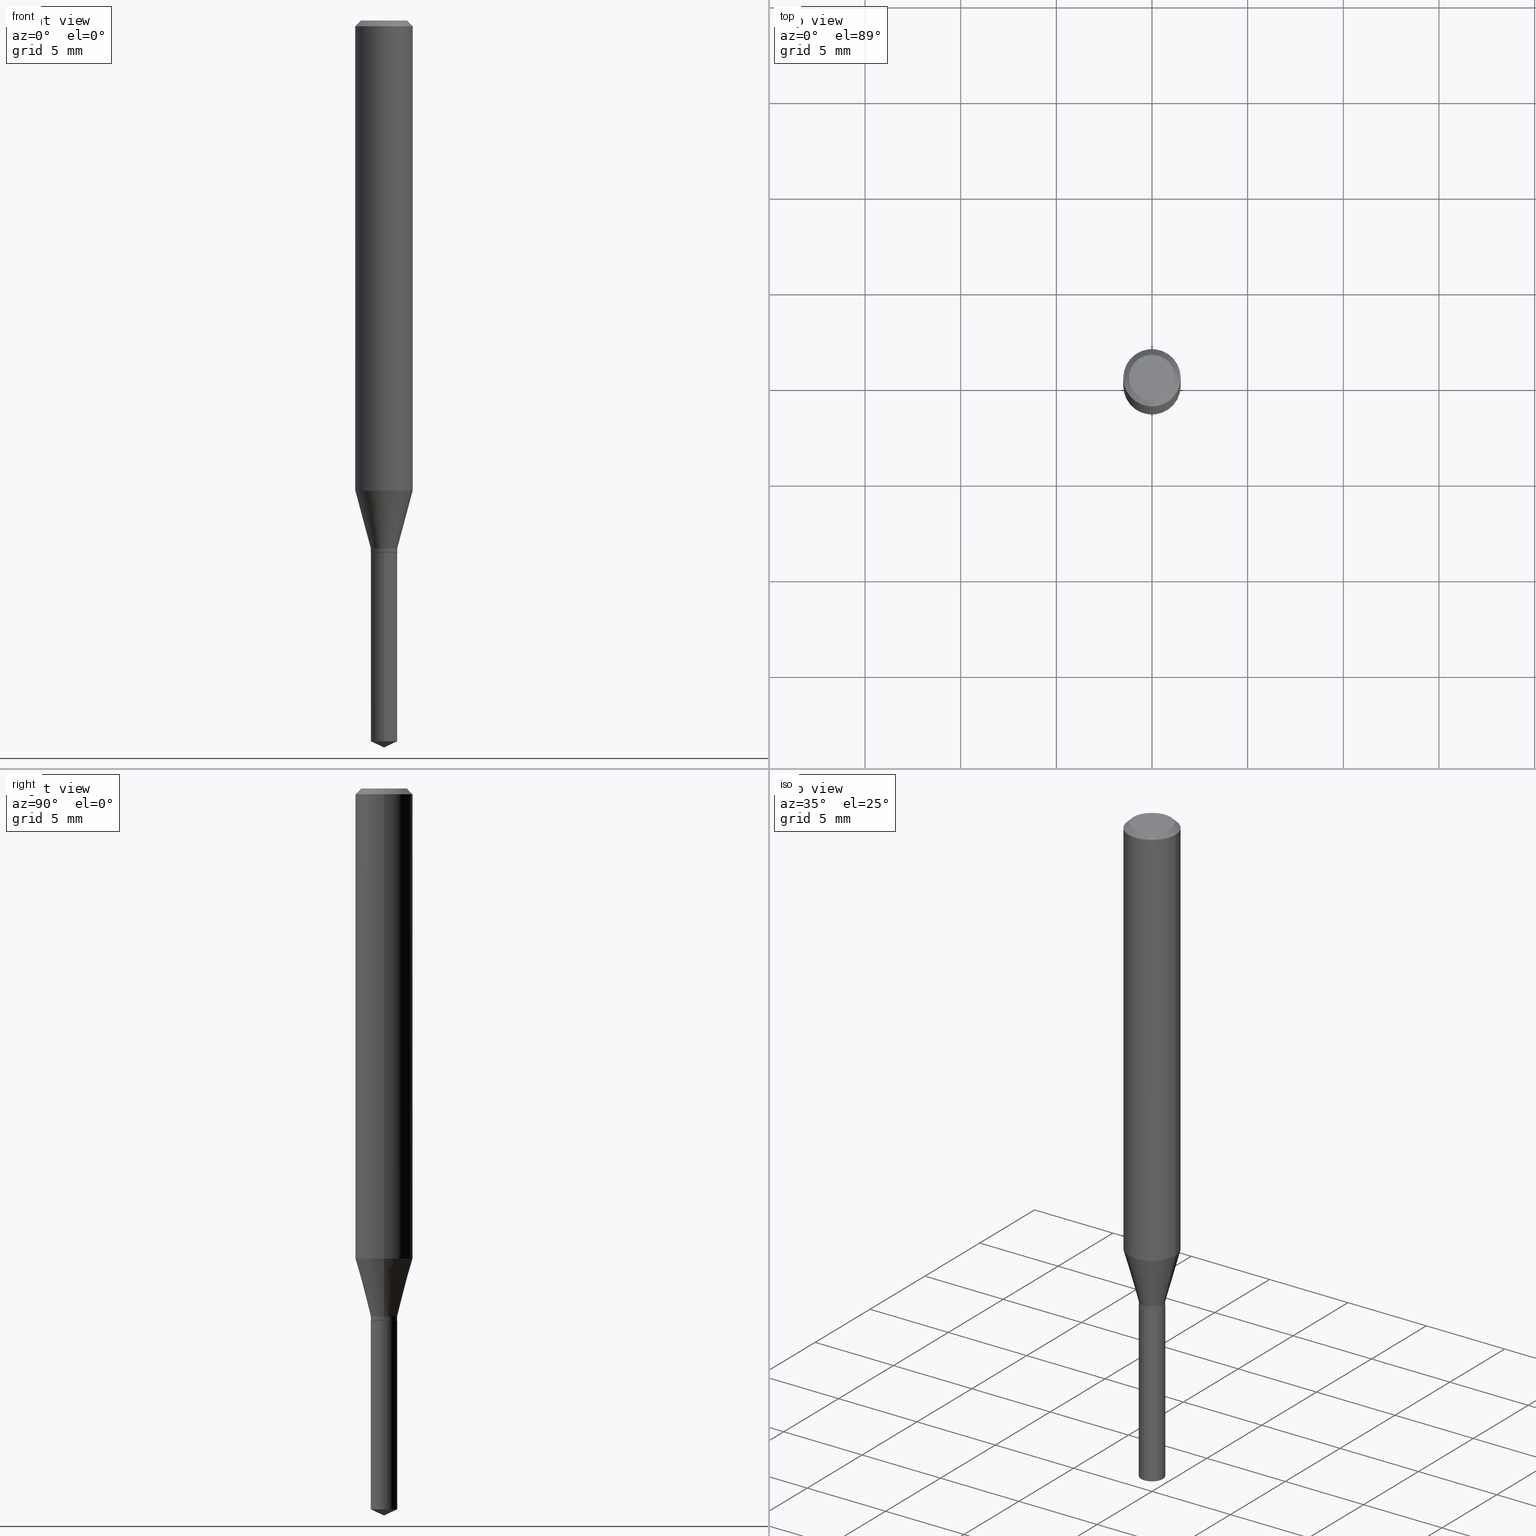
[diagram: canonical four-view strip — front | top / right | iso, engineering-drawing reading convention]
A machine part, canonical four-view strip (front | top / right | iso — engineering-drawing reading convention). The complete STEP part file that produces these views, byte-faithful:
ISO-10303-21;
HEADER;
FILE_DESCRIPTION (( 'STEP AP203' ),
    '1' );
FILE_NAME ('07526.STEP',
    '2024-04-23T22:29:34',
    ( '' ),
    ( '' ),
    'SwSTEP 2.0',
    'SolidWorks 2023',
    '' );
FILE_SCHEMA (( 'CONFIG_CONTROL_DESIGN' ));
ENDSEC;

DATA;
#1 = EDGE_CURVE ( 'NONE', #100, #319, #302, .T. ) ;
#2 =( CONVERSION_BASED_UNIT ( 'INCH', #303 ) LENGTH_UNIT ( ) NAMED_UNIT ( #450 ) );
#3 = DIRECTION ( 'NONE',  ( -0.7071067811865452413, 2.468850131082233000E-15, -0.7071067811865497932 ) ) ;
#4 = DIRECTION ( 'NONE',  ( -2.438088387897960049E-29, 3.491481338843145188E-15, 1.000000000000000000 ) ) ;
#5 = CARTESIAN_POINT ( 'NONE',  ( 0.02715000000000000052, -3.982732763218375225E-15, -1.086399999999999810 ) ) ;
#6 = AXIS2_PLACEMENT_3D ( 'NONE', #469, #51, #463 ) ;
#7 = FACE_OUTER_BOUND ( 'NONE', #132, .T. ) ;
#8 = DIRECTION ( 'NONE',  ( 1.000000000000000000, -6.982962677686266711E-15, 0.000000000000000000 ) ) ;
#9 = ORIENTED_EDGE ( 'NONE', *, *, #137, .F. ) ;
#10 = EDGE_CURVE ( 'NONE', #170, #144, #180, .T. ) ;
#11 = SECURITY_CLASSIFICATION_LEVEL ( 'unclassified' ) ;
#12 = CARTESIAN_POINT ( 'NONE',  ( -0.05904999999999999832, 3.711095515056362547E-16, -0.01181000000000007565 ) ) ;
#13 = ORIENTED_EDGE ( 'NONE', *, *, #285, .F. ) ;
#14 = COORDINATED_UNIVERSAL_TIME_OFFSET ( 5, 0, .BEHIND. ) ;
#15 = DIRECTION ( 'NONE',  ( -6.982962677686266711E-15, -1.000000000000000000, 0.000000000000000000 ) ) ;
#16 = ORIENTED_EDGE ( 'NONE', *, *, #445, .T. ) ;
#17 = CARTESIAN_POINT ( 'NONE',  ( 2.888098660104664642E-31, -4.123439461173780879E-17, -0.01181000000000007565 ) ) ;
#18 = EDGE_LOOP ( 'NONE', ( #20, #215 ) ) ;
#19 = DATE_TIME_ROLE ( 'creation_date' ) ;
#20 = ORIENTED_EDGE ( 'NONE', *, *, #1, .T. ) ;
#21 = VECTOR ( 'NONE', #487, 39.37007874015747433 ) ;
#22 = AXIS2_PLACEMENT_3D ( 'NONE', #318, #199, #15 ) ;
#23 = ORIENTED_EDGE ( 'NONE', *, *, #147, .T. ) ;
#24 = EDGE_CURVE ( 'NONE', #164, #431, #451, .T. ) ;
#25 = LINE ( 'NONE', #334, #381 ) ;
#26 = FACE_OUTER_BOUND ( 'NONE', #322, .T. ) ;
#27 = AXIS2_PLACEMENT_3D ( 'NONE', #227, #114, #221 ) ;
#28 = DIRECTION ( 'NONE',  ( -1.000000000000000000, 6.982962677686265922E-15, -4.876176775795935793E-29 ) ) ;
#29 = EDGE_CURVE ( 'NONE', #236, #439, #145, .T. ) ;
#30 = CC_DESIGN_DATE_AND_TIME_ASSIGNMENT ( #308, #389, ( #89 ) ) ;
#31 = DIRECTION ( 'NONE',  ( -2.445470214571802116E-29, 3.491479321953280158E-15, 1.000000000000000000 ) ) ;
#32 = DIRECTION ( 'NONE',  ( 1.000000000000000000, -6.982962677686261977E-15, 0.000000000000000000 ) ) ;
#33 =( LENGTH_UNIT ( ) NAMED_UNIT ( * ) SI_UNIT ( $, .METRE. ) );
#34 = DIRECTION ( 'NONE',  ( 0.7071067811865452413, -7.319954787623248157E-15, -0.7071067811865497932 ) ) ;
#35 = VECTOR ( 'NONE', #417, 39.37007874015748143 ) ;
#36 = CYLINDRICAL_SURFACE ( 'NONE', #50, 0.02715000000000000052 ) ;
#37 = CARTESIAN_POINT ( 'NONE',  ( 2.888098660104664642E-31, -4.123439461173780879E-17, -0.01181000000000007565 ) ) ;
#38 = CARTESIAN_POINT ( 'NONE',  ( 2.676565608369631234E-29, -3.821426325363821984E-15, -1.094499999999999806 ) ) ;
#39 = CARTESIAN_POINT ( 'NONE',  ( 2.676565608369631794E-29, -3.821426325363822773E-15, -1.094499999999999806 ) ) ;
#40 = LINE ( 'NONE', #266, #35 ) ;
#41 = ADVANCED_FACE ( 'NONE', ( #149 ), #87, .T. ) ;
#42 = DIRECTION ( 'NONE',  ( -6.982962677686267499E-15, -1.000000000000000000, 3.520397390770428626E-15 ) ) ;
#43 = PRODUCT_DEFINITION ( 'UNKNOWN', '', #127, #265 ) ;
#44 = ORIENTED_EDGE ( 'NONE', *, *, #135, .F. ) ;
#45 = APPROVAL_STATUS ( 'not_yet_approved' ) ;
#46 = ORIENTED_EDGE ( 'NONE', *, *, #75, .T. ) ;
#47 = ORIENTED_EDGE ( 'NONE', *, *, #92, .F. ) ;
#48 = CIRCLE ( 'NONE', #257, 0.04724000000000000421 ) ;
#49 = CC_DESIGN_PERSON_AND_ORGANIZATION_ASSIGNMENT ( #278, #169, ( #43 ) ) ;
#50 = AXIS2_PLACEMENT_3D ( 'NONE', #408, #67, #345 ) ;
#51 = DIRECTION ( 'NONE',  ( -2.445468806185136597E-29, 3.491481338843145583E-15, 1.000000000000000000 ) ) ;
#52 = EDGE_LOOP ( 'NONE', ( #406, #86, #239, #461 ) ) ;
#53 = APPROVAL_DATE_TIME ( #240, #94 ) ;
#54 = ORIENTED_EDGE ( 'NONE', *, *, #358, .F. ) ;
#55 = DIRECTION ( 'NONE',  ( -2.445468806185136597E-29, 3.491481338843145583E-15, 1.000000000000000000 ) ) ;
#56 = ORIENTED_EDGE ( 'NONE', *, *, #445, .F. ) ;
#57 = ADVANCED_FACE ( 'NONE', ( #218 ), #422, .T. ) ;
#58 = CIRCLE ( 'NONE', #223, 0.02715000000000000052 ) ;
#59 = CIRCLE ( 'NONE', #480, 0.05904999999999999832 ) ;
#60 = DIRECTION ( 'NONE',  ( -2.445470214571802116E-29, 3.491479321953280158E-15, 1.000000000000000000 ) ) ;
#61 = DIRECTION ( 'NONE',  ( -2.445468806185136877E-29, 3.491481338843145188E-15, 1.000000000000000000 ) ) ;
#62 = EDGE_CURVE ( 'NONE', #439, #164, #400, .T. ) ;
#63 = PLANE ( 'NONE',  #133 ) ;
#64 = ORGANIZATION ( 'UNSPECIFIED', 'UNSPECIFIED', '' ) ;
#65 = CARTESIAN_POINT ( 'NONE',  ( 2.888098660104664642E-31, -4.123439461173780879E-17, -0.01181000000000007565 ) ) ;
#66 = CARTESIAN_POINT ( 'NONE',  ( 2.676565608369631234E-29, -3.821426325363821984E-15, -1.094499999999999806 ) ) ;
#67 = DIRECTION ( 'NONE',  ( -2.445470214571802116E-29, 3.491479321953280158E-15, 1.000000000000000000 ) ) ;
#68 = CARTESIAN_POINT ( 'NONE',  ( -0.02715000000000000052, -3.613500602847929800E-15, -1.086399999999999810 ) ) ;
#69 = CARTESIAN_POINT ( 'NONE',  ( -0.05904999999999999832, -1.289779722382777120E-15, -0.01181000000000007565 ) ) ;
#70 = DIRECTION ( 'NONE',  ( 1.000000000000000000, -6.982962677686261977E-15, 0.000000000000000000 ) ) ;
#71 = AXIS2_PLACEMENT_3D ( 'NONE', #39, #262, #375 ) ;
#72 = CARTESIAN_POINT ( 'NONE',  ( 8.265746106709734507E-48, -1.180129479067563789E-33, -3.380025165646692144E-19 ) ) ;
#73 = DIRECTION ( 'NONE',  ( 1.000000000000000000, -6.982962677686266711E-15, 0.000000000000000000 ) ) ;
#74 = CARTESIAN_POINT ( 'NONE',  ( 3.658664905062460986E-29, -5.223606628546217219E-15, -1.496099999999999985 ) ) ;
#75 = EDGE_CURVE ( 'NONE', #439, #359, #434, .T. ) ;
#76 = LINE ( 'NONE', #453, #447 ) ;
#77 = ORIENTED_EDGE ( 'NONE', *, *, #329, .T. ) ;
#78 = CIRCLE ( 'NONE', #96, 0.02715000000000000052 ) ;
#79 = MECHANICAL_CONTEXT ( 'NONE', #125, 'mechanical' ) ;
#80 = ORIENTED_EDGE ( 'NONE', *, *, #158, .F. ) ;
#81 = PERSON_AND_ORGANIZATION_ROLE ( 'design_owner' ) ;
#82 = CARTESIAN_POINT ( 'NONE',  ( 0.02715000000000000052, -4.009268021393582868E-15, -1.093999999999999861 ) ) ;
#83 = ORIENTED_EDGE ( 'NONE', *, *, #369, .F. ) ;
#84 = PRODUCT_RELATED_PRODUCT_CATEGORY ( 'detail', '', ( #331 ) ) ;
#85 = CALENDAR_DATE ( 2024, 23, 4 ) ;
#86 = ORIENTED_EDGE ( 'NONE', *, *, #10, .T. ) ;
#87 = CONICAL_SURFACE ( 'NONE', #120, 84.42940631927494621, 1.134464013796318671 ) ;
#88 = AXIS2_PLACEMENT_3D ( 'NONE', #244, #395, #391 ) ;
#89 = SECURITY_CLASSIFICATION ( '', '', #11 ) ;
#90 = ORIENTED_EDGE ( 'NONE', *, *, #183, .T. ) ;
#91 = CARTESIAN_POINT ( 'NONE',  ( 8.265746106709734507E-48, -1.180129479067563789E-33, -3.380025165646692144E-19 ) ) ;
#92 = EDGE_CURVE ( 'NONE', #174, #326, #25, .T. ) ;
#93 = EDGE_LOOP ( 'NONE', ( #388, #484 ) ) ;
#94 = APPROVAL ( #45, 'UNSPECIFIED' ) ;
#95 = ORIENTED_EDGE ( 'NONE', *, *, #226, .T. ) ;
#96 = AXIS2_PLACEMENT_3D ( 'NONE', #452, #107, #342 ) ;
#97 = CARTESIAN_POINT ( 'NONE',  ( 2.675342873966538993E-29, -3.819680584694400481E-15, -1.093999999999999861 ) ) ;
#98 = FACE_OUTER_BOUND ( 'NONE', #258, .T. ) ;
#99 = CC_DESIGN_PERSON_AND_ORGANIZATION_ASSIGNMENT ( #351, #81, ( #331 ) ) ;
#100 = VERTEX_POINT ( 'NONE', #446 ) ;
#101 = AXIS2_PLACEMENT_3D ( 'NONE', #380, #490, #341 ) ;
#102 = DIRECTION ( 'NONE',  ( 1.000000000000000000, -6.982962677686262766E-15, 0.000000000000000000 ) ) ;
#103 = APPROVAL_PERSON_ORGANIZATION ( #429, #94, #471 ) ;
#104 = DIRECTION ( 'NONE',  ( -2.445468806185136597E-29, 3.491481338843145583E-15, 1.000000000000000000 ) ) ;
#105 = DIRECTION ( 'NONE',  ( -6.328713451373382789E-15, -0.9063077870366502697, 0.4226182617406985531 ) ) ;
#106 = ADVANCED_FACE ( 'NONE', ( #26 ), #217, .T. ) ;
#107 = DIRECTION ( 'NONE',  ( -2.445468806185136597E-29, 3.491481338843145583E-15, 1.000000000000000000 ) ) ;
#108 = CARTESIAN_POINT ( 'NONE',  ( -0.04724000000000000421, 3.504923541997677355E-16, -3.380025165670481712E-19 ) ) ;
#109 = ORIENTED_EDGE ( 'NONE', *, *, #204, .F. ) ;
#110 = LINE ( 'NONE', #146, #283 ) ;
#111 = CYLINDRICAL_SURFACE ( 'NONE', #101, 0.02715000000000000052 ) ;
#112 = AXIS2_PLACEMENT_3D ( 'NONE', #404, #402, #185 ) ;
#113 = ADVANCED_FACE ( 'NONE', ( #178 ), #63, .F. ) ;
#114 = DIRECTION ( 'NONE',  ( -2.445468806185136597E-29, 3.491481338843145583E-15, 1.000000000000000000 ) ) ;
#115 = CARTESIAN_POINT ( 'NONE',  ( 0.05904999999999999832, -4.535783407291118600E-16, -0.01181000000000007565 ) ) ;
#116 = CARTESIAN_POINT ( 'NONE',  ( -1.895874366991458285E-16, -0.02715000000000517000, -1.483439747081091831 ) ) ;
#117 = ORIENTED_EDGE ( 'NONE', *, *, #75, .F. ) ;
#118 = PERSON_AND_ORGANIZATION_ROLE ( 'creator' ) ;
#119 = LINE ( 'NONE', #207, #441 ) ;
#120 = AXIS2_PLACEMENT_3D ( 'NONE', #296, #31, #220 ) ;
#121 = VERTEX_POINT ( 'NONE', #181 ) ;
#122 = AXIS2_PLACEMENT_3D ( 'NONE', #66, #368, #32 ) ;
#123 = AXIS2_PLACEMENT_3D ( 'NONE', #264, #4, #413 ) ;
#124 = DATE_AND_TIME ( #85, #193 ) ;
#125 = APPLICATION_CONTEXT ( 'configuration controlled 3d designs of mechanical parts and assemblies' ) ;
#126 = FACE_OUTER_BOUND ( 'NONE', #350, .T. ) ;
#127 = PRODUCT_DEFINITION_FORMATION_WITH_SPECIFIED_SOURCE ( 'ANY', '', #331, .NOT_KNOWN. ) ;
#128 = ORIENTED_EDGE ( 'NONE', *, *, #1, .F. ) ;
#129 = APPLICATION_PROTOCOL_DEFINITION ( 'international standard', 'config_control_design', 1994, #212 ) ;
#130 = ORIENTED_EDGE ( 'NONE', *, *, #241, .T. ) ;
#131 = APPROVAL_DATE_TIME ( #124, #271 ) ;
#132 = EDGE_LOOP ( 'NONE', ( #138, #353, #128, #428 ) ) ;
#133 = AXIS2_PLACEMENT_3D ( 'NONE', #139, #252, #28 ) ;
#134 = CC_DESIGN_APPROVAL ( #271, ( #43 ) ) ;
#135 = EDGE_CURVE ( 'NONE', #326, #201, #179, .T. ) ;
#136 = ORIENTED_EDGE ( 'NONE', *, *, #291, .F. ) ;
#137 = EDGE_CURVE ( 'NONE', #359, #439, #58, .T. ) ;
#138 = ORIENTED_EDGE ( 'NONE', *, *, #360, .T. ) ;
#139 = CARTESIAN_POINT ( 'NONE',  ( 4.132873053354867254E-48, -5.900647395337818946E-34, -1.690012582823346072E-19 ) ) ;
#140 = CIRCLE ( 'NONE', #213, 0.02715000000000000052 ) ;
#141 = ADVANCED_FACE ( 'NONE', ( #98 ), #332, .T. ) ;
#142 = CARTESIAN_POINT ( 'NONE',  ( -0.02715000000000000052, 1.929123527588672042E-16, -1.335490877004206968E-30 ) ) ;
#143 = UNCERTAINTY_MEASURE_WITH_UNIT (LENGTH_MEASURE( 1.000000000000000082E-05 ), #2, 'distance_accuracy_value', 'NONE');
#144 = VERTEX_POINT ( 'NONE', #116 ) ;
#145 = LINE ( 'NONE', #362, #273 ) ;
#146 = CARTESIAN_POINT ( 'NONE',  ( -1.895874366991553935E-16, -0.02715000000000382038, -1.094499999999999806 ) ) ;
#147 = EDGE_CURVE ( 'NONE', #436, #236, #288, .T. ) ;
#148 = CIRCLE ( 'NONE', #372, 0.05905000000000011628 ) ;
#149 = FACE_OUTER_BOUND ( 'NONE', #314, .T. ) ;
#150 = PLANE ( 'NONE',  #123 ) ;
#151 = CARTESIAN_POINT ( 'NONE',  ( 1.929123527588939268E-16, 0.02714999999999618066, -1.094500000000000028 ) ) ;
#152 = PLANE ( 'NONE',  #71 ) ;
#153 = DIRECTION ( 'NONE',  ( -2.445468806185136597E-29, 3.491481338843145583E-15, 1.000000000000000000 ) ) ;
#154 = EDGE_CURVE ( 'NONE', #316, #478, #410, .T. ) ;
#155 = CARTESIAN_POINT ( 'NONE',  ( 2.656757311039532110E-29, -3.793145326519192838E-15, -1.086399999999999810 ) ) ;
#156 = DIRECTION ( 'NONE',  ( -2.445468806185136597E-29, 3.491481338843145583E-15, 1.000000000000000000 ) ) ;
#157 = VECTOR ( 'NONE', #214, 39.37007874015748143 ) ;
#158 = EDGE_CURVE ( 'NONE', #436, #359, #420, .T. ) ;
#159 = FACE_OUTER_BOUND ( 'NONE', #390, .T. ) ;
#160 = CARTESIAN_POINT ( 'NONE',  ( 0.000000000000000000, 0.000000000000000000, 0.000000000000000000 ) ) ;
#161 = DIRECTION ( 'NONE',  ( -6.982962677686266711E-15, -1.000000000000000000, 5.031027612641368670E-15 ) ) ;
#162 = DATE_AND_TIME ( #348, #405 ) ;
#163 = CLOSED_SHELL ( 'NONE', ( #483, #41, #305, #270, #425 ) ) ;
#164 = VERTEX_POINT ( 'NONE', #68 ) ;
#165 = CONICAL_SURFACE ( 'NONE', #488, 0.02715000000000000052, 0.2617993877991500740 ) ;
#166 = COORDINATED_UNIVERSAL_TIME_OFFSET ( 5, 0, .BEHIND. ) ;
#167 = CC_DESIGN_APPROVAL ( #297, ( #89 ) ) ;
#168 = EDGE_LOOP ( 'NONE', ( #361, #293, #275, #13 ) ) ;
#169 = PERSON_AND_ORGANIZATION_ROLE ( 'creator' ) ;
#170 = VERTEX_POINT ( 'NONE', #455 ) ;
#171 = EDGE_CURVE ( 'NONE', #170, #319, #374, .T. ) ;
#172 = APPROVAL_ROLE ( '' ) ;
#173 = DIRECTION ( 'NONE',  ( -2.445468806185136877E-29, 3.491481338843145188E-15, 1.000000000000000000 ) ) ;
#174 = VERTEX_POINT ( 'NONE', #5 ) ;
#175 = AXIS2_PLACEMENT_3D ( 'NONE', #309, #414, #161 ) ;
#176 = APPROVAL_PERSON_ORGANIZATION ( #462, #297, #172 ) ;
#177 = ORIENTED_EDGE ( 'NONE', *, *, #135, .T. ) ;
#178 = FACE_OUTER_BOUND ( 'NONE', #93, .T. ) ;
#179 = LINE ( 'NONE', #401, #321 ) ;
#180 = CIRCLE ( 'NONE', #112, 0.02715000000000000052 ) ;
#181 = CARTESIAN_POINT ( 'NONE',  ( 3.658667988020872822E-29, -5.223602213574301462E-15, -1.496099999999999985 ) ) ;
#182 = DIRECTION ( 'NONE',  ( -1.000000000000000000, 6.982962677686266711E-15, 0.000000000000000000 ) ) ;
#183 = EDGE_CURVE ( 'NONE', #201, #478, #415, .T. ) ;
#184 = FACE_OUTER_BOUND ( 'NONE', #336, .T. ) ;
#185 = DIRECTION ( 'NONE',  ( -6.982962677686266711E-15, -1.000000000000000000, 0.000000000000000000 ) ) ;
#186 = VECTOR ( 'NONE', #173, 39.37007874015748143 ) ;
#187 = CARTESIAN_POINT ( 'NONE',  ( -0.02665000000000000008, -3.629417459109644428E-15, -1.094499999999999806 ) ) ;
#188 = DIRECTION ( 'NONE',  ( 1.000000000000000000, -6.982962677686261977E-15, 0.000000000000000000 ) ) ;
#189 = DIRECTION ( 'NONE',  ( 1.000000000000000000, -6.982962677686266711E-15, 0.000000000000000000 ) ) ;
#190 = CARTESIAN_POINT ( 'NONE',  ( 0.02665000000000000008, -4.007522280724161365E-15, -1.094499999999999806 ) ) ;
#191 = CARTESIAN_POINT ( 'NONE',  ( -0.02715000000000000052, -3.613500602847929800E-15, -1.093999999999999861 ) ) ;
#192 = CARTESIAN_POINT ( 'NONE',  ( -9.261968845786000133E-28, 1.322362114038720264E-13, 37.87397874015748300 ) ) ;
#193 = LOCAL_TIME ( 18, 29, 34.00000000000000000, #311 ) ;
#194 = APPROVAL_STATUS ( 'not_yet_approved' ) ;
#195 = DIRECTION ( 'NONE',  ( 0.7071067811866199593, -2.468850131083015945E-15, 0.7071067811864750752 ) ) ;
#196 = ADVANCED_FACE ( 'NONE', ( #306 ), #370, .T. ) ;
#197 = ORIENTED_EDGE ( 'NONE', *, *, #158, .T. ) ;
#198 = PERSON_AND_ORGANIZATION_ROLE ( 'design_supplier' ) ;
#199 = DIRECTION ( 'NONE',  ( -2.445470214571802116E-29, 3.491479321953280158E-15, 1.000000000000000000 ) ) ;
#200 = AXIS2_PLACEMENT_3D ( 'NONE', #37, #222, #8 ) ;
#201 = VERTEX_POINT ( 'NONE', #115 ) ;
#202 = AXIS2_PLACEMENT_3D ( 'NONE', #192, #376, #42 ) ;
#203 = DIRECTION ( 'NONE',  ( -1.000000000000000000, 6.982962677686266711E-15, 0.000000000000000000 ) ) ;
#204 = EDGE_CURVE ( 'NONE', #316, #465, #48, .T. ) ;
#205 = ORIENTED_EDGE ( 'NONE', *, *, #92, .T. ) ;
#206 = CALENDAR_DATE ( 2024, 23, 4 ) ;
#207 = CARTESIAN_POINT ( 'NONE',  ( 3.658668015054778287E-29, -5.223602213574301462E-15, -1.496099999999999985 ) ) ;
#208 = PERSON ( 'UNSPECIFIED', 'UNSPECIFIED', 'UNSPECIFIED', ('UNSPECIFIED'), ('UNSPECIFIED'), ('UNSPECIFIED') ) ;
#209 = ORIENTED_EDGE ( 'NONE', *, *, #154, .F. ) ;
#210 = DIRECTION ( 'NONE',  ( 1.000000000000000000, -6.982962677686266711E-15, 4.876185090822587894E-29 ) ) ;
#211 = EDGE_LOOP ( 'NONE', ( #246, #472 ) ) ;
#212 = APPLICATION_CONTEXT ( 'configuration controlled 3d designs of mechanical parts and assemblies' ) ;
#213 = AXIS2_PLACEMENT_3D ( 'NONE', #486, #382, #489 ) ;
#214 = DIRECTION ( 'NONE',  ( -2.445468806185136877E-29, 3.491481338843145188E-15, 1.000000000000000000 ) ) ;
#215 = ORIENTED_EDGE ( 'NONE', *, *, #219, .T. ) ;
#216 = DIRECTION ( 'NONE',  ( -0.7071067811866199593, 7.493145998870616062E-15, 0.7071067811864750752 ) ) ;
#217 = CONICAL_SURFACE ( 'NONE', #122, 0.02665000000000000008, 0.7853981633975507526 ) ;
#218 = FACE_OUTER_BOUND ( 'NONE', #255, .T. ) ;
#219 = EDGE_CURVE ( 'NONE', #319, #100, #251, .T. ) ;
#220 = DIRECTION ( 'NONE',  ( -6.982962677686267499E-15, -1.000000000000000000, 3.520397390770428626E-15 ) ) ;
#221 = DIRECTION ( 'NONE',  ( 1.000000000000000000, -6.982962677686266711E-15, 4.876176775795935793E-29 ) ) ;
#222 = DIRECTION ( 'NONE',  ( -2.445468806185136597E-29, 3.491481338843145583E-15, 1.000000000000000000 ) ) ;
#223 = AXIS2_PLACEMENT_3D ( 'NONE', #328, #481, #443 ) ;
#224 = DIRECTION ( 'NONE',  ( 1.000000000000000000, -6.982962677686262766E-15, 0.000000000000000000 ) ) ;
#225 = DIRECTION ( 'NONE',  ( -2.445468806185136597E-29, 3.491481338843145583E-15, 1.000000000000000000 ) ) ;
#226 = EDGE_CURVE ( 'NONE', #465, #201, #76, .T. ) ;
#227 = CARTESIAN_POINT ( 'NONE',  ( 0.000000000000000000, 0.000000000000000000, 0.000000000000000000 ) ) ;
#228 = DIRECTION ( 'NONE',  ( 1.000000000000000000, -6.982962677686266711E-15, 0.000000000000000000 ) ) ;
#229 = CARTESIAN_POINT ( 'NONE',  ( 0.02665000000000000008, -4.007522280724161365E-15, -1.094499999999999806 ) ) ;
#230 = DIRECTION ( 'NONE',  ( -2.445468806185136597E-29, 3.491481338843145583E-15, 1.000000000000000000 ) ) ;
#231 = CARTESIAN_POINT ( 'NONE',  ( 2.656757311039532110E-29, -3.793145326519192838E-15, -1.086399999999999810 ) ) ;
#232 = DIRECTION ( 'NONE',  ( 1.000000000000000000, -6.982962677686261977E-15, 0.000000000000000000 ) ) ;
#233 = CIRCLE ( 'NONE', #274, 0.02665000000000000008 ) ;
#234 = ADVANCED_FACE ( 'NONE', ( #457 ), #416, .T. ) ;
#235 = COORDINATED_UNIVERSAL_TIME_OFFSET ( 5, 0, .BEHIND. ) ;
#236 = VERTEX_POINT ( 'NONE', #187 ) ;
#237 = CALENDAR_DATE ( 2024, 23, 4 ) ;
#238 = FACE_OUTER_BOUND ( 'NONE', #253, .T. ) ;
#239 = ORIENTED_EDGE ( 'NONE', *, *, #407, .T. ) ;
#240 = DATE_AND_TIME ( #237, #324 ) ;
#241 = EDGE_CURVE ( 'NONE', #121, #144, #268, .T. ) ;
#242 = ORIENTED_EDGE ( 'NONE', *, *, #291, .T. ) ;
#243 = AXIS2_PLACEMENT_3D ( 'NONE', #231, #104, #224 ) ;
#244 = CARTESIAN_POINT ( 'NONE',  ( 0.000000000000000000, 0.000000000000000000, 0.000000000000000000 ) ) ;
#245 = CYLINDRICAL_SURFACE ( 'NONE', #6, 0.02715000000000000052 ) ;
#246 = ORIENTED_EDGE ( 'NONE', *, *, #147, .F. ) ;
#247 = COORDINATED_UNIVERSAL_TIME_OFFSET ( 5, 0, .BEHIND. ) ;
#248 = ORIENTED_EDGE ( 'NONE', *, *, #226, .F. ) ;
#249 = DIRECTION ( 'NONE',  ( 2.445468806185136597E-29, -3.491481338843145583E-15, -1.000000000000000000 ) ) ;
#250 = VECTOR ( 'NONE', #3, 39.37007874015748143 ) ;
#251 = CIRCLE ( 'NONE', #175, 0.02715000000000000052 ) ;
#252 = DIRECTION ( 'NONE',  ( 2.438088387897960049E-29, -3.491481338843145188E-15, -1.000000000000000000 ) ) ;
#253 = EDGE_LOOP ( 'NONE', ( #421, #46, #279, #470 ) ) ;
#254 = EDGE_CURVE ( 'NONE', #236, #436, #233, .T. ) ;
#255 = EDGE_LOOP ( 'NONE', ( #248, #109, #442, #479 ) ) ;
#256 = AXIS2_PLACEMENT_3D ( 'NONE', #38, #263, #70 ) ;
#257 = AXIS2_PLACEMENT_3D ( 'NONE', #72, #153, #304 ) ;
#258 = EDGE_LOOP ( 'NONE', ( #242, #77, #444, #44 ) ) ;
#259 = CC_DESIGN_SECURITY_CLASSIFICATION ( #89, ( #127 ) ) ;
#260 = DIRECTION ( 'NONE',  ( 1.000000000000000000, -6.982962677686262766E-15, 0.000000000000000000 ) ) ;
#261 = FACE_OUTER_BOUND ( 'NONE', #52, .T. ) ;
#262 = DIRECTION ( 'NONE',  ( 2.445470214571801836E-29, -3.491479321953280158E-15, -1.000000000000000000 ) ) ;
#263 = DIRECTION ( 'NONE',  ( -2.445468806185136597E-29, 3.491481338843145583E-15, 1.000000000000000000 ) ) ;
#264 = CARTESIAN_POINT ( 'NONE',  ( 6.593847349413128432E-29, 1.788344085640935917E-15, -1.094499999999999806 ) ) ;
#265 = DESIGN_CONTEXT ( 'detailed design', #212, 'design' ) ;
#266 = CARTESIAN_POINT ( 'NONE',  ( 0.02715000000000000052, -1.895874366991821408E-16, 1.323881994628596621E-30 ) ) ;
#267 = CARTESIAN_POINT ( 'NONE',  ( 0.04724000000000000421, -3.852183633974369345E-16, -3.380025165621689721E-19 ) ) ;
#268 = LINE ( 'NONE', #74, #435 ) ;
#269 = DIRECTION ( 'NONE',  ( 1.000000000000000000, -6.982962677686266711E-15, 4.876176775795935793E-29 ) ) ;
#270 = ADVANCED_FACE ( 'NONE', ( #261 ), #111, .T. ) ;
#271 = APPROVAL ( #194, 'UNSPECIFIED' ) ;
#272 = CALENDAR_DATE ( 2024, 23, 4 ) ;
#273 = VECTOR ( 'NONE', #216, 39.37007874015748143 ) ;
#274 = AXIS2_PLACEMENT_3D ( 'NONE', #339, #460, #188 ) ;
#275 = ORIENTED_EDGE ( 'NONE', *, *, #467, .F. ) ;
#276 = DIRECTION ( 'NONE',  ( 6.439704144417038242E-15, 0.9063077870366533784, 0.4226182617406922803 ) ) ;
#277 = ORIENTED_EDGE ( 'NONE', *, *, #358, .T. ) ;
#278 = PERSON_AND_ORGANIZATION ( #208, #64 ) ;
#279 = ORIENTED_EDGE ( 'NONE', *, *, #285, .T. ) ;
#280 = PERSON_AND_ORGANIZATION ( #208, #64 ) ;
#281 = AXIS2_PLACEMENT_3D ( 'NONE', #65, #249, #182 ) ;
#282 = ORIENTED_EDGE ( 'NONE', *, *, #377, .F. ) ;
#283 = VECTOR ( 'NONE', #338, 39.37007874015748143 ) ;
#284 = ORIENTED_EDGE ( 'NONE', *, *, #360, .F. ) ;
#285 = EDGE_CURVE ( 'NONE', #359, #174, #40, .T. ) ;
#286 = ORIENTED_EDGE ( 'NONE', *, *, #329, .F. ) ;
#287 = DIRECTION ( 'NONE',  ( -6.982962677686266711E-15, -1.000000000000000000, 5.031027612641368670E-15 ) ) ;
#288 = CIRCLE ( 'NONE', #256, 0.02665000000000000008 ) ;
#289 = CIRCLE ( 'NONE', #22, 0.02715000000000000052 ) ;
#290 = DIRECTION ( 'NONE',  ( -2.445468806185136597E-29, 3.491481338843145583E-15, 1.000000000000000000 ) ) ;
#291 = EDGE_CURVE ( 'NONE', #326, #431, #466, .T. ) ;
#292 = CARTESIAN_POINT ( 'NONE',  ( -0.02715000000000000052, -3.600232973760325584E-15, -1.086399999999999810 ) ) ;
#293 = ORIENTED_EDGE ( 'NONE', *, *, #62, .T. ) ;
#294 = CONICAL_SURFACE ( 'NONE', #383, 0.05904999999999999832, 0.7853981633974450594 ) ;
#295 = DIRECTION ( 'NONE',  ( -2.445468806185136597E-29, 3.491481338843145583E-15, 1.000000000000000000 ) ) ;
#296 = CARTESIAN_POINT ( 'NONE',  ( -9.261968845786000133E-28, 1.322362114038720264E-13, 37.87397874015748300 ) ) ;
#297 = APPROVAL ( #315, 'UNSPECIFIED' ) ;
#298 = FACE_OUTER_BOUND ( 'NONE', #211, .T. ) ;
#299 = FACE_OUTER_BOUND ( 'NONE', #366, .T. ) ;
#300 = FACE_OUTER_BOUND ( 'NONE', #18, .T. ) ;
#301 = DIRECTION ( 'NONE',  ( -2.445468806185136597E-29, 3.491481338843145583E-15, 1.000000000000000000 ) ) ;
#302 = CIRCLE ( 'NONE', #440, 0.02715000000000000052 ) ;
#303 = LENGTH_MEASURE_WITH_UNIT ( LENGTH_MEASURE( 0.02539999999999999897 ), #33 );
#304 = DIRECTION ( 'NONE',  ( 1.000000000000000000, -6.982962677686266711E-15, 4.876185090822587894E-29 ) ) ;
#305 = ADVANCED_FACE ( 'NONE', ( #299 ), #337, .T. ) ;
#306 = FACE_OUTER_BOUND ( 'NONE', #168, .T. ) ;
#307 = EDGE_LOOP ( 'NONE', ( #385, #438, #205, #56 ) ) ;
#308 = DATE_AND_TIME ( #206, #458 ) ;
#309 = CARTESIAN_POINT ( 'NONE',  ( 2.676565608369631794E-29, -3.821426325363822773E-15, -1.094499999999999806 ) ) ;
#310 = ORIENTED_EDGE ( 'NONE', *, *, #24, .T. ) ;
#311 = COORDINATED_UNIVERSAL_TIME_OFFSET ( 5, 0, .BEHIND. ) ;
#312 = AXIS2_PLACEMENT_3D ( 'NONE', #482, #225, #269 ) ;
#313 = AXIS2_PLACEMENT_3D ( 'NONE', #384, #230, #228 ) ;
#314 = EDGE_LOOP ( 'NONE', ( #398, #277, #284 ) ) ;
#315 = APPROVAL_STATUS ( 'not_yet_approved' ) ;
#316 = VERTEX_POINT ( 'NONE', #108 ) ;
#317 = PERSON_AND_ORGANIZATION ( #208, #64 ) ;
#318 = CARTESIAN_POINT ( 'NONE',  ( 3.627706175119532216E-29, -5.179401409783194451E-15, -1.483439747081091831 ) ) ;
#319 = VERTEX_POINT ( 'NONE', #343 ) ;
#320 = APPROVAL_DATE_TIME ( #387, #297 ) ;
#321 = VECTOR ( 'NONE', #61, 39.37007874015748143 ) ;
#322 = EDGE_LOOP ( 'NONE', ( #23, #354, #9, #80 ) ) ;
#323 = CIRCLE ( 'NONE', #424, 0.04724000000000000421 ) ;
#324 = LOCAL_TIME ( 18, 29, 34.00000000000000000, #235 ) ;
#325 = ADVANCED_FACE ( 'NONE', ( #238 ), #245, .T. ) ;
#326 = VERTEX_POINT ( 'NONE', #430 ) ;
#327 = CARTESIAN_POINT ( 'NONE',  ( 2.676565608369631794E-29, -3.821426325363822773E-15, -1.094499999999999806 ) ) ;
#328 = CARTESIAN_POINT ( 'NONE',  ( 2.675342873966538993E-29, -3.819680584694400481E-15, -1.093999999999999861 ) ) ;
#329 = EDGE_CURVE ( 'NONE', #431, #478, #427, .T. ) ;
#330 = AXIS2_PLACEMENT_3D ( 'NONE', #160, #301, #349 ) ;
#331 = PRODUCT ( '07526', '07526', '', ( #79 ) ) ;
#332 = CYLINDRICAL_SURFACE ( 'NONE', #312, 0.05905000000000006077 ) ;
#333 = CARTESIAN_POINT ( 'NONE',  ( 2.888098660104664642E-31, -4.123439461173780879E-17, -0.01181000000000007565 ) ) ;
#334 = CARTESIAN_POINT ( 'NONE',  ( 0.02715000000000000052, -3.982732763218375225E-15, -1.086399999999999810 ) ) ;
#335 = FACE_OUTER_BOUND ( 'NONE', #307, .T. ) ;
#336 = EDGE_LOOP ( 'NONE', ( #397, #310, #136, #47 ) ) ;
#337 = CONICAL_SURFACE ( 'NONE', #202, 84.42940631927494621, 1.134464013796318671 ) ;
#338 = DIRECTION ( 'NONE',  ( -2.445470214571802396E-29, 3.491479321953280158E-15, 1.000000000000000000 ) ) ;
#339 = CARTESIAN_POINT ( 'NONE',  ( 2.676565608369631234E-29, -3.821426325363821984E-15, -1.094499999999999806 ) ) ;
#340 = DIRECTION ( 'NONE',  ( -2.445468806185136597E-29, 3.491481338843145583E-15, 1.000000000000000000 ) ) ;
#341 = DIRECTION ( 'NONE',  ( -6.982962677686266711E-15, -1.000000000000000000, 5.031027612641368670E-15 ) ) ;
#342 = DIRECTION ( 'NONE',  ( 1.000000000000000000, -6.982962677686262766E-15, 0.000000000000000000 ) ) ;
#343 = CARTESIAN_POINT ( 'NONE',  ( 1.929123527589035411E-16, 0.02714999999999618413, -1.094500000000000028 ) ) ;
#344 = ADVANCED_FACE ( 'NONE', ( #126 ), #294, .T. ) ;
#345 = DIRECTION ( 'NONE',  ( -6.982962677686266711E-15, -1.000000000000000000, 5.031027612641368670E-15 ) ) ;
#346 = APPROVAL_PERSON_ORGANIZATION ( #423, #271, #355 ) ;
#347 = CARTESIAN_POINT ( 'NONE',  ( 2.676565608369631234E-29, -3.821426325363821984E-15, -1.094499999999999806 ) ) ;
#348 = CALENDAR_DATE ( 2024, 23, 4 ) ;
#349 = DIRECTION ( 'NONE',  ( 1.000000000000000000, -6.982962677686266711E-15, 4.876176775795935793E-29 ) ) ;
#350 = EDGE_LOOP ( 'NONE', ( #83, #95, #90, #209 ) ) ;
#351 = PERSON_AND_ORGANIZATION ( #208, #64 ) ;
#352 = VECTOR ( 'NONE', #419, 39.37007874015748143 ) ;
#353 = ORIENTED_EDGE ( 'NONE', *, *, #171, .T. ) ;
#354 = ORIENTED_EDGE ( 'NONE', *, *, #29, .T. ) ;
#355 = APPROVAL_ROLE ( '' ) ;
#356 = CARTESIAN_POINT ( 'NONE',  ( -0.05905000000000006077, 4.195754854663395916E-16, -2.904631170795524694E-30 ) ) ;
#357 = ORIENTED_EDGE ( 'NONE', *, *, #10, .F. ) ;
#358 = EDGE_CURVE ( 'NONE', #121, #170, #119, .T. ) ;
#359 = VERTEX_POINT ( 'NONE', #82 ) ;
#360 = EDGE_CURVE ( 'NONE', #144, #170, #289, .T. ) ;
#361 = ORIENTED_EDGE ( 'NONE', *, *, #137, .T. ) ;
#362 = CARTESIAN_POINT ( 'NONE',  ( -0.02665000000000000008, -3.632066686283755630E-15, -1.094499999999999806 ) ) ;
#363 = DIRECTION ( 'NONE',  ( 0.2588190451025213501, 1.565188264969621968E-15, 0.9659258262890682012 ) ) ;
#364 = AXIS2_PLACEMENT_3D ( 'NONE', #97, #290, #102 ) ;
#365 = CONICAL_SURFACE ( 'NONE', #243, 0.02715000000000000052, 0.2617993877991500740 ) ;
#366 = EDGE_LOOP ( 'NONE', ( #54, #130, #357 ) ) ;
#367 = ADVANCED_BREP_SHAPE_REPRESENTATION ( '07526', ( #411, #403, #88 ), #392 ) ;
#368 = DIRECTION ( 'NONE',  ( -2.445468806185136597E-29, 3.491481338843145583E-15, 1.000000000000000000 ) ) ;
#369 = EDGE_CURVE ( 'NONE', #465, #316, #323, .T. ) ;
#370 = CYLINDRICAL_SURFACE ( 'NONE', #330, 0.02715000000000000052 ) ;
#371 = VECTOR ( 'NONE', #195, 39.37007874015748143 ) ;
#372 = AXIS2_PLACEMENT_3D ( 'NONE', #454, #449, #189 ) ;
#373 = CYLINDRICAL_SURFACE ( 'NONE', #27, 0.05905000000000006077 ) ;
#374 = LINE ( 'NONE', #151, #352 ) ;
#375 = DIRECTION ( 'NONE',  ( 6.982962677686265922E-15, 1.000000000000000000, -3.491479321953280158E-15 ) ) ;
#376 = DIRECTION ( 'NONE',  ( -2.445470214571802116E-29, 3.491479321953280158E-15, 1.000000000000000000 ) ) ;
#377 = EDGE_CURVE ( 'NONE', #478, #201, #59, .T. ) ;
#378 = CC_DESIGN_PERSON_AND_ORGANIZATION_ASSIGNMENT ( #280, #198, ( #127 ) ) ;
#379 = CARTESIAN_POINT ( 'NONE',  ( -0.05905000000000011628, -2.957900535620157582E-15, -0.9673475792385526351 ) ) ;
#380 = CARTESIAN_POINT ( 'NONE',  ( 2.676565608369631794E-29, -3.821426325363822773E-15, -1.094499999999999806 ) ) ;
#381 = VECTOR ( 'NONE', #363, 39.37007874015747433 ) ;
#382 = DIRECTION ( 'NONE',  ( -2.445468806185136597E-29, 3.491481338843145583E-15, 1.000000000000000000 ) ) ;
#383 = AXIS2_PLACEMENT_3D ( 'NONE', #17, #437, #203 ) ;
#384 = CARTESIAN_POINT ( 'NONE',  ( 2.365618329766585158E-29, -3.377476021086497075E-15, -0.9673475792385526351 ) ) ;
#385 = ORIENTED_EDGE ( 'NONE', *, *, #24, .F. ) ;
#386 = CC_DESIGN_APPROVAL ( #94, ( #127 ) ) ;
#387 = DATE_AND_TIME ( #272, #394 ) ;
#388 = ORIENTED_EDGE ( 'NONE', *, *, #204, .T. ) ;
#389 = DATE_TIME_ROLE ( 'classification_date' ) ;
#390 = EDGE_LOOP ( 'NONE', ( #286, #16, #177, #282 ) ) ;
#391 = DIRECTION ( 'NONE',  ( 1.000000000000000000, 0.000000000000000000, 0.000000000000000000 ) ) ;
#392 =( GEOMETRIC_REPRESENTATION_CONTEXT ( 3 ) GLOBAL_UNCERTAINTY_ASSIGNED_CONTEXT ( ( #143 ) ) GLOBAL_UNIT_ASSIGNED_CONTEXT ( ( #2, #459, #418 ) ) REPRESENTATION_CONTEXT ( 'NONE', 'WORKASPACE' ) );
#393 = ORIENTED_EDGE ( 'NONE', *, *, #29, .F. ) ;
#394 = LOCAL_TIME ( 18, 29, 34.00000000000000000, #247 ) ;
#395 = DIRECTION ( 'NONE',  ( 0.000000000000000000, 0.000000000000000000, 1.000000000000000000 ) ) ;
#396 = EDGE_CURVE ( 'NONE', #164, #174, #78, .T. ) ;
#397 = ORIENTED_EDGE ( 'NONE', *, *, #467, .T. ) ;
#398 = ORIENTED_EDGE ( 'NONE', *, *, #241, .F. ) ;
#399 = CLOSED_SHELL ( 'NONE', ( #106, #344, #141, #464, #196, #325, #473, #485, #57, #113, #433, #234 ) ) ;
#400 = LINE ( 'NONE', #142, #157 ) ;
#401 = CARTESIAN_POINT ( 'NONE',  ( 0.05905000000000006077, -4.123439461173744764E-16, 2.879382386107503023E-30 ) ) ;
#402 = DIRECTION ( 'NONE',  ( -2.445470214571802116E-29, 3.491479321953280158E-15, 1.000000000000000000 ) ) ;
#403 = MANIFOLD_SOLID_BREP ( 'Body-Move/Copy2[2]', #399 ) ;
#404 = CARTESIAN_POINT ( 'NONE',  ( 3.627706175119532216E-29, -5.179401409783194451E-15, -1.483439747081091831 ) ) ;
#405 = LOCAL_TIME ( 18, 29, 34.00000000000000000, #166 ) ;
#406 = ORIENTED_EDGE ( 'NONE', *, *, #171, .F. ) ;
#407 = EDGE_CURVE ( 'NONE', #144, #100, #110, .T. ) ;
#408 = CARTESIAN_POINT ( 'NONE',  ( 2.676565608369631794E-29, -3.821426325363822773E-15, -1.094499999999999806 ) ) ;
#409 = CC_DESIGN_PERSON_AND_ORGANIZATION_ASSIGNMENT ( #317, #118, ( #127 ) ) ;
#410 = LINE ( 'NONE', #12, #250 ) ;
#411 = MANIFOLD_SOLID_BREP ( 'Body-Move/Copy2[1]', #163 ) ;
#412 = PRODUCT_DEFINITION_SHAPE ( 'NONE', 'NONE',  #43 ) ;
#413 = DIRECTION ( 'NONE',  ( 1.000000000000000000, -6.982962677686265922E-15, 4.876176775795935793E-29 ) ) ;
#414 = DIRECTION ( 'NONE',  ( -2.445470214571802116E-29, 3.491479321953280158E-15, 1.000000000000000000 ) ) ;
#415 = CIRCLE ( 'NONE', #200, 0.05904999999999999832 ) ;
#416 = CONICAL_SURFACE ( 'NONE', #456, 0.02665000000000000008, 0.7853981633975507526 ) ;
#417 = DIRECTION ( 'NONE',  ( -2.445468806185136877E-29, 3.491481338843145188E-15, 1.000000000000000000 ) ) ;
#418 =( NAMED_UNIT ( * ) SI_UNIT ( $, .STERADIAN. ) SOLID_ANGLE_UNIT ( ) );
#419 = DIRECTION ( 'NONE',  ( -2.445470214571802396E-29, 3.491479321953280158E-15, 1.000000000000000000 ) ) ;
#420 = LINE ( 'NONE', #190, #371 ) ;
#421 = ORIENTED_EDGE ( 'NONE', *, *, #62, .F. ) ;
#422 = CONICAL_SURFACE ( 'NONE', #281, 0.05904999999999999832, 0.7853981633974450594 ) ;
#423 = PERSON_AND_ORGANIZATION ( #208, #64 ) ;
#424 = AXIS2_PLACEMENT_3D ( 'NONE', #91, #55, #210 ) ;
#425 = ADVANCED_FACE ( 'NONE', ( #300 ), #152, .F. ) ;
#426 = APPLICATION_PROTOCOL_DEFINITION ( 'international standard', 'config_control_design', 1994, #125 ) ;
#427 = LINE ( 'NONE', #356, #186 ) ;
#428 = ORIENTED_EDGE ( 'NONE', *, *, #407, .F. ) ;
#429 = PERSON_AND_ORGANIZATION ( #208, #64 ) ;
#430 = CARTESIAN_POINT ( 'NONE',  ( 0.05905000000000011628, -3.789819967203871995E-15, -0.9673475792385526351 ) ) ;
#431 = VERTEX_POINT ( 'NONE', #379 ) ;
#432 = PERSON_AND_ORGANIZATION ( #208, #64 ) ;
#433 = ADVANCED_FACE ( 'NONE', ( #298 ), #150, .F. ) ;
#434 = CIRCLE ( 'NONE', #364, 0.02715000000000000052 ) ;
#435 = VECTOR ( 'NONE', #105, 39.37007874015748143 ) ;
#436 = VERTEX_POINT ( 'NONE', #229 ) ;
#437 = DIRECTION ( 'NONE',  ( 2.445468806185136597E-29, -3.491481338843145583E-15, -1.000000000000000000 ) ) ;
#438 = ORIENTED_EDGE ( 'NONE', *, *, #396, .T. ) ;
#439 = VERTEX_POINT ( 'NONE', #191 ) ;
#440 = AXIS2_PLACEMENT_3D ( 'NONE', #327, #60, #287 ) ;
#441 = VECTOR ( 'NONE', #276, 39.37007874015748854 ) ;
#442 = ORIENTED_EDGE ( 'NONE', *, *, #154, .T. ) ;
#443 = DIRECTION ( 'NONE',  ( 1.000000000000000000, -6.982962677686262766E-15, 0.000000000000000000 ) ) ;
#444 = ORIENTED_EDGE ( 'NONE', *, *, #183, .F. ) ;
#445 = EDGE_CURVE ( 'NONE', #431, #326, #148, .T. ) ;
#446 = CARTESIAN_POINT ( 'NONE',  ( -1.895874366991553935E-16, -0.02715000000000382038, -1.094499999999999806 ) ) ;
#447 = VECTOR ( 'NONE', #34, 39.37007874015748143 ) ;
#448 = CC_DESIGN_PERSON_AND_ORGANIZATION_ASSIGNMENT ( #432, #468, ( #89 ) ) ;
#449 = DIRECTION ( 'NONE',  ( -2.445468806185136597E-29, 3.491481338843145583E-15, 1.000000000000000000 ) ) ;
#450 = DIMENSIONAL_EXPONENTS ( 1.000000000000000000, 0.000000000000000000, 0.000000000000000000, 0.000000000000000000, 0.000000000000000000, 0.000000000000000000, 0.000000000000000000 ) ;
#451 = LINE ( 'NONE', #292, #21 ) ;
#452 = CARTESIAN_POINT ( 'NONE',  ( 2.656757311039532110E-29, -3.793145326519192838E-15, -1.086399999999999810 ) ) ;
#453 = CARTESIAN_POINT ( 'NONE',  ( 0.05904999999999999832, -4.463468013801466955E-16, -0.01181000000000007565 ) ) ;
#454 = CARTESIAN_POINT ( 'NONE',  ( 2.365618329766585158E-29, -3.377476021086497075E-15, -0.9673475792385526351 ) ) ;
#455 = CARTESIAN_POINT ( 'NONE',  ( 1.929123527589034178E-16, 0.02714999999999482064, -1.483439747081091831 ) ) ;
#456 = AXIS2_PLACEMENT_3D ( 'NONE', #347, #156, #232 ) ;
#457 = FACE_OUTER_BOUND ( 'NONE', #474, .T. ) ;
#458 = LOCAL_TIME ( 18, 29, 34.00000000000000000, #14 ) ;
#459 =( NAMED_UNIT ( * ) PLANE_ANGLE_UNIT ( ) SI_UNIT ( $, .RADIAN. ) );
#460 = DIRECTION ( 'NONE',  ( -2.445468806185136597E-29, 3.491481338843145583E-15, 1.000000000000000000 ) ) ;
#461 = ORIENTED_EDGE ( 'NONE', *, *, #219, .F. ) ;
#462 = PERSON_AND_ORGANIZATION ( #208, #64 ) ;
#463 = DIRECTION ( 'NONE',  ( 1.000000000000000000, -6.982962677686266711E-15, 4.876176775795935793E-29 ) ) ;
#464 = ADVANCED_FACE ( 'NONE', ( #184 ), #165, .T. ) ;
#465 = VERTEX_POINT ( 'NONE', #267 ) ;
#466 = CIRCLE ( 'NONE', #313, 0.05905000000000011628 ) ;
#467 = EDGE_CURVE ( 'NONE', #174, #164, #140, .T. ) ;
#468 = PERSON_AND_ORGANIZATION_ROLE ( 'classification_officer' ) ;
#469 = CARTESIAN_POINT ( 'NONE',  ( 0.000000000000000000, 0.000000000000000000, 0.000000000000000000 ) ) ;
#470 = ORIENTED_EDGE ( 'NONE', *, *, #396, .F. ) ;
#471 = APPROVAL_ROLE ( '' ) ;
#472 = ORIENTED_EDGE ( 'NONE', *, *, #254, .F. ) ;
#473 = ADVANCED_FACE ( 'NONE', ( #335 ), #365, .T. ) ;
#474 = EDGE_LOOP ( 'NONE', ( #393, #477, #197, #117 ) ) ;
#475 = CC_DESIGN_DATE_AND_TIME_ASSIGNMENT ( #162, #19, ( #43 ) ) ;
#476 = SHAPE_DEFINITION_REPRESENTATION ( #412, #367 ) ;
#477 = ORIENTED_EDGE ( 'NONE', *, *, #254, .T. ) ;
#478 = VERTEX_POINT ( 'NONE', #69 ) ;
#479 = ORIENTED_EDGE ( 'NONE', *, *, #377, .T. ) ;
#480 = AXIS2_PLACEMENT_3D ( 'NONE', #333, #295, #73 ) ;
#481 = DIRECTION ( 'NONE',  ( -2.445468806185136597E-29, 3.491481338843145583E-15, 1.000000000000000000 ) ) ;
#482 = CARTESIAN_POINT ( 'NONE',  ( 0.000000000000000000, 0.000000000000000000, 0.000000000000000000 ) ) ;
#483 = ADVANCED_FACE ( 'NONE', ( #7 ), #36, .T. ) ;
#484 = ORIENTED_EDGE ( 'NONE', *, *, #369, .T. ) ;
#485 = ADVANCED_FACE ( 'NONE', ( #159 ), #373, .T. ) ;
#486 = CARTESIAN_POINT ( 'NONE',  ( 2.656757311039532110E-29, -3.793145326519192838E-15, -1.086399999999999810 ) ) ;
#487 = DIRECTION ( 'NONE',  ( -0.2588190451025213501, 5.211531920934551042E-15, 0.9659258262890682012 ) ) ;
#488 = AXIS2_PLACEMENT_3D ( 'NONE', #155, #340, #260 ) ;
#489 = DIRECTION ( 'NONE',  ( 1.000000000000000000, -6.982962677686262766E-15, 0.000000000000000000 ) ) ;
#490 = DIRECTION ( 'NONE',  ( -2.445470214571802116E-29, 3.491479321953280158E-15, 1.000000000000000000 ) ) ;
ENDSEC;
END-ISO-10303-21;
